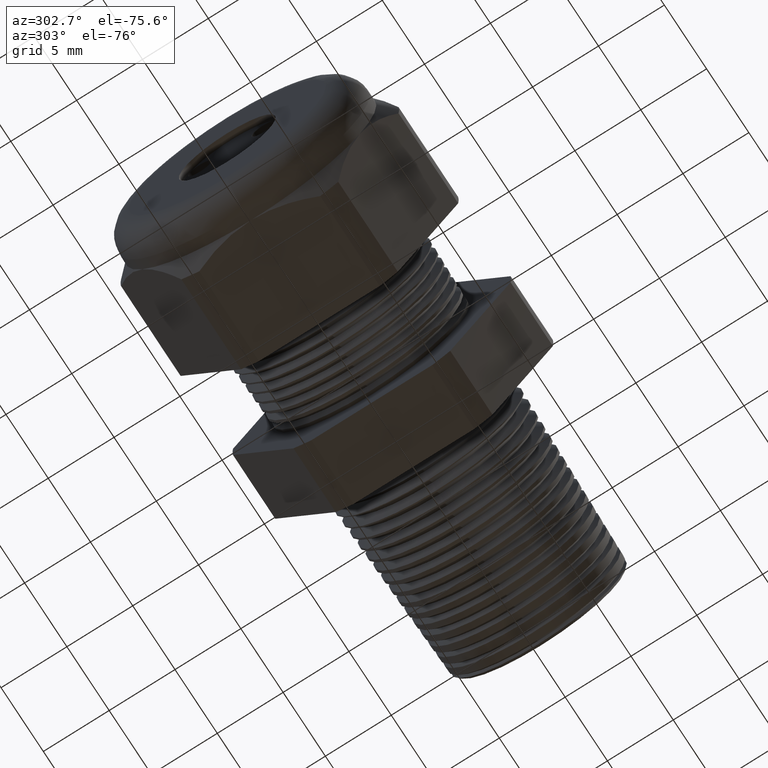
[diagram: clean part render]
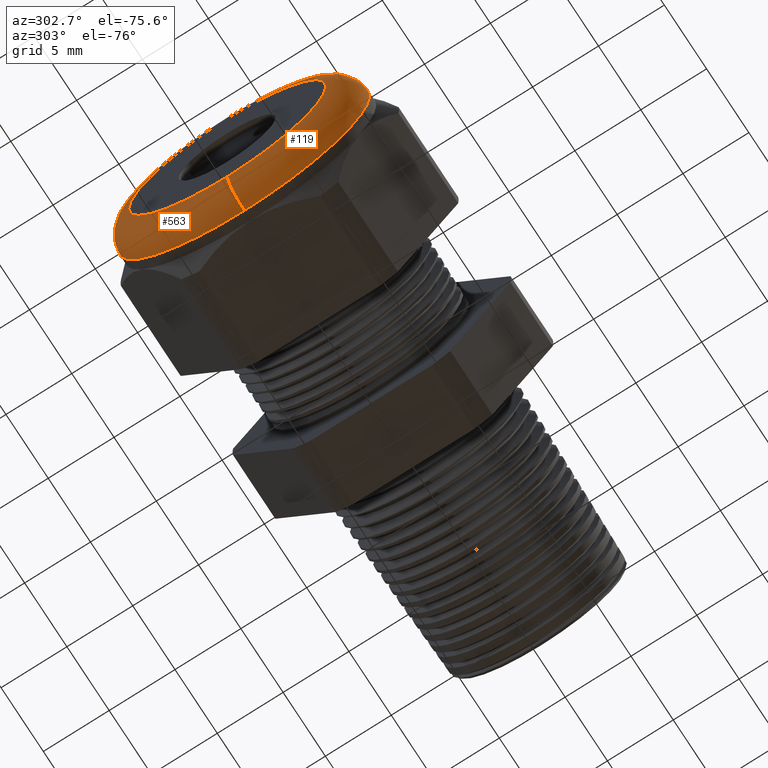
[diagram: same view with one multi-face feature highlighted, each face labeled with its STEP entity id]
A machine part, auxiliary view. The highlighted faces form ONE feature: a constant-radius fillet chain: 2 tangent blend faces with common blend radius 2.032 mm. The faces share edges in the B-rep.
Their STEP definitions:
[1] entity #563 (Torus):
#563 = ADVANCED_FACE ( 'NONE', ( #2725 ), #2724, .T. ) ;
#564 = EDGE_LOOP ( 'NONE', ( #565, #622, #625, #628 ) ) ;
#565 = ORIENTED_EDGE ( 'NONE', *, *, #566, .F. ) ;
#566 = EDGE_CURVE ( 'NONE', #567, #568, #2719, .T. ) ;
#567 = VERTEX_POINT ( 'NONE', #2714 ) ;
#568 = VERTEX_POINT ( 'NONE', #2713 ) ;
#622 = ORIENTED_EDGE ( 'NONE', *, *, #623, .T. ) ;
#623 = EDGE_CURVE ( 'NONE', #567, #624, #2859, .T. ) ;
#624 = VERTEX_POINT ( 'NONE', #2854 ) ;
#625 = ORIENTED_EDGE ( 'NONE', *, *, #626, .F. ) ;
#626 = EDGE_CURVE ( 'NONE', #627, #624, #2853, .T. ) ;
#627 = VERTEX_POINT ( 'NONE', #2848 ) ;
#628 = ORIENTED_EDGE ( 'NONE', *, *, #629, .F. ) ;
#629 = EDGE_CURVE ( 'NONE', #568, #627, #2847, .T. ) ;
#2713 = CARTESIAN_POINT ( 'NONE',  ( -1.100000000000000100, 4.592425496802576100E-017, 0.3750000000000001100 ) ) ;
#2714 = CARTESIAN_POINT ( 'NONE',  ( -1.100000000000000100, 0.0000000000000000000, -0.3750000000000001100 ) ) ;
#2715 = DIRECTION ( 'NONE',  ( 0.0000000000000000000, 0.0000000000000000000, 1.000000000000000000 ) ) ;
#2716 = DIRECTION ( 'NONE',  ( 1.000000000000000000, 0.0000000000000000000, 0.0000000000000000000 ) ) ;
#2717 = CARTESIAN_POINT ( 'NONE',  ( -1.100000000000000100, 0.0000000000000000000, 0.0000000000000000000 ) ) ;
#2718 = AXIS2_PLACEMENT_3D ( 'NONE', #2717, #2716, #2715 ) ;
#2719 = CIRCLE ( 'NONE', #2718, 0.3750000000000001100 ) ;
#2720 = DIRECTION ( 'NONE',  ( 0.0000000000000000000, 0.0000000000000000000, 1.000000000000000000 ) ) ;
#2721 = DIRECTION ( 'NONE',  ( -1.000000000000000000, 0.0000000000000000000, 0.0000000000000000000 ) ) ;
#2722 = CARTESIAN_POINT ( 'NONE',  ( -1.100000000000000100, 0.0000000000000000000, 0.0000000000000000000 ) ) ;
#2723 = AXIS2_PLACEMENT_3D ( 'NONE', #2722, #2721, #2720 ) ;
#2724 = TOROIDAL_SURFACE ( 'NONE', #2723, 0.2950000000000001000, 0.08000000000000000200 ) ;
#2725 = FACE_OUTER_BOUND ( 'NONE', #564, .T. ) ;
#2843 = DIRECTION ( 'NONE',  ( 0.0000000000000000000, 0.0000000000000000000, -1.000000000000000000 ) ) ;
#2844 = DIRECTION ( 'NONE',  ( 0.0000000000000000000, -1.000000000000000000, 0.0000000000000000000 ) ) ;
#2845 = CARTESIAN_POINT ( 'NONE',  ( -1.100000000000000100, 0.0000000000000000000, 0.2950000000000001000 ) ) ;
#2846 = AXIS2_PLACEMENT_3D ( 'NONE', #2845, #2844, #2843 ) ;
#2847 = CIRCLE ( 'NONE', #2846, 0.08000000000000000200 ) ;
#2848 = CARTESIAN_POINT ( 'NONE',  ( -1.179999999999999900, 0.0000000000000000000, 0.2950000000000001000 ) ) ;
#2849 = DIRECTION ( 'NONE',  ( 0.0000000000000000000, 0.0000000000000000000, 1.000000000000000000 ) ) ;
#2850 = DIRECTION ( 'NONE',  ( -1.000000000000000000, 0.0000000000000000000, 0.0000000000000000000 ) ) ;
#2851 = CARTESIAN_POINT ( 'NONE',  ( -1.179999999999999900, 0.0000000000000000000, 0.0000000000000000000 ) ) ;
#2852 = AXIS2_PLACEMENT_3D ( 'NONE', #2851, #2850, #2849 ) ;
#2853 = CIRCLE ( 'NONE', #2852, 0.2950000000000001000 ) ;
#2854 = CARTESIAN_POINT ( 'NONE',  ( -1.179999999999999900, 4.102566777143634000E-017, -0.2950000000000001000 ) ) ;
#2855 = DIRECTION ( 'NONE',  ( 0.0000000000000000000, -1.224646799147353500E-016, 1.000000000000000000 ) ) ;
#2856 = DIRECTION ( 'NONE',  ( 0.0000000000000000000, 1.000000000000000000, 1.224646799147353200E-016 ) ) ;
#2857 = CARTESIAN_POINT ( 'NONE',  ( -1.100000000000000100, 3.612708057484693200E-017, -0.2950000000000001000 ) ) ;
#2858 = AXIS2_PLACEMENT_3D ( 'NONE', #2857, #2856, #2855 ) ;
#2859 = CIRCLE ( 'NONE', #2858, 0.08000000000000000200 ) ;
[2] entity #119 (Torus):
#41 = EDGE_LOOP ( 'NONE', ( #42, #99, #100, #101 ) ) ;
#42 = ORIENTED_EDGE ( 'NONE', *, *, #623, .F. ) ;
#99 = ORIENTED_EDGE ( 'NONE', *, *, #1262, .F. ) ;
#100 = ORIENTED_EDGE ( 'NONE', *, *, #629, .T. ) ;
#101 = ORIENTED_EDGE ( 'NONE', *, *, #1203, .F. ) ;
#119 = ADVANCED_FACE ( 'NONE', ( #1974 ), #1973, .T. ) ;
#567 = VERTEX_POINT ( 'NONE', #2714 ) ;
#568 = VERTEX_POINT ( 'NONE', #2713 ) ;
#623 = EDGE_CURVE ( 'NONE', #567, #624, #2859, .T. ) ;
#624 = VERTEX_POINT ( 'NONE', #2854 ) ;
#627 = VERTEX_POINT ( 'NONE', #2848 ) ;
#629 = EDGE_CURVE ( 'NONE', #568, #627, #2847, .T. ) ;
#1203 = EDGE_CURVE ( 'NONE', #624, #627, #4001, .T. ) ;
#1262 = EDGE_CURVE ( 'NONE', #568, #567, #4039, .T. ) ;
#1970 = DIRECTION ( 'NONE',  ( 0.0000000000000000000, 0.0000000000000000000, 1.000000000000000000 ) ) ;
#1971 = DIRECTION ( 'NONE',  ( -1.000000000000000000, 0.0000000000000000000, 0.0000000000000000000 ) ) ;
#1972 = AXIS2_PLACEMENT_3D ( 'NONE', #1978, #1971, #1970 ) ;
#1973 = TOROIDAL_SURFACE ( 'NONE', #1972, 0.2950000000000001000, 0.08000000000000000200 ) ;
#1974 = FACE_OUTER_BOUND ( 'NONE', #41, .T. ) ;
#1978 = CARTESIAN_POINT ( 'NONE',  ( -1.100000000000000100, 0.0000000000000000000, 0.0000000000000000000 ) ) ;
#2713 = CARTESIAN_POINT ( 'NONE',  ( -1.100000000000000100, 4.592425496802576100E-017, 0.3750000000000001100 ) ) ;
#2714 = CARTESIAN_POINT ( 'NONE',  ( -1.100000000000000100, 0.0000000000000000000, -0.3750000000000001100 ) ) ;
#2843 = DIRECTION ( 'NONE',  ( 0.0000000000000000000, 0.0000000000000000000, -1.000000000000000000 ) ) ;
#2844 = DIRECTION ( 'NONE',  ( 0.0000000000000000000, -1.000000000000000000, 0.0000000000000000000 ) ) ;
#2845 = CARTESIAN_POINT ( 'NONE',  ( -1.100000000000000100, 0.0000000000000000000, 0.2950000000000001000 ) ) ;
#2846 = AXIS2_PLACEMENT_3D ( 'NONE', #2845, #2844, #2843 ) ;
#2847 = CIRCLE ( 'NONE', #2846, 0.08000000000000000200 ) ;
#2848 = CARTESIAN_POINT ( 'NONE',  ( -1.179999999999999900, 0.0000000000000000000, 0.2950000000000001000 ) ) ;
#2854 = CARTESIAN_POINT ( 'NONE',  ( -1.179999999999999900, 4.102566777143634000E-017, -0.2950000000000001000 ) ) ;
#2855 = DIRECTION ( 'NONE',  ( 0.0000000000000000000, -1.224646799147353500E-016, 1.000000000000000000 ) ) ;
#2856 = DIRECTION ( 'NONE',  ( 0.0000000000000000000, 1.000000000000000000, 1.224646799147353200E-016 ) ) ;
#2857 = CARTESIAN_POINT ( 'NONE',  ( -1.100000000000000100, 3.612708057484693200E-017, -0.2950000000000001000 ) ) ;
#2858 = AXIS2_PLACEMENT_3D ( 'NONE', #2857, #2856, #2855 ) ;
#2859 = CIRCLE ( 'NONE', #2858, 0.08000000000000000200 ) ;
#3944 = CARTESIAN_POINT ( 'NONE',  ( -1.179999999999999900, 0.0000000000000000000, 0.0000000000000000000 ) ) ;
#3998 = DIRECTION ( 'NONE',  ( 0.0000000000000000000, 0.0000000000000000000, 1.000000000000000000 ) ) ;
#3999 = DIRECTION ( 'NONE',  ( -1.000000000000000000, 0.0000000000000000000, 0.0000000000000000000 ) ) ;
#4000 = AXIS2_PLACEMENT_3D ( 'NONE', #3944, #3999, #3998 ) ;
#4001 = CIRCLE ( 'NONE', #4000, 0.2950000000000001000 ) ;
#4039 = CIRCLE ( 'NONE', #4097, 0.3750000000000001100 ) ;
#4094 = DIRECTION ( 'NONE',  ( 0.0000000000000000000, 0.0000000000000000000, 1.000000000000000000 ) ) ;
#4095 = DIRECTION ( 'NONE',  ( 1.000000000000000000, 0.0000000000000000000, 0.0000000000000000000 ) ) ;
#4096 = CARTESIAN_POINT ( 'NONE',  ( -1.100000000000000100, 0.0000000000000000000, 0.0000000000000000000 ) ) ;
#4097 = AXIS2_PLACEMENT_3D ( 'NONE', #4096, #4095, #4094 ) ;